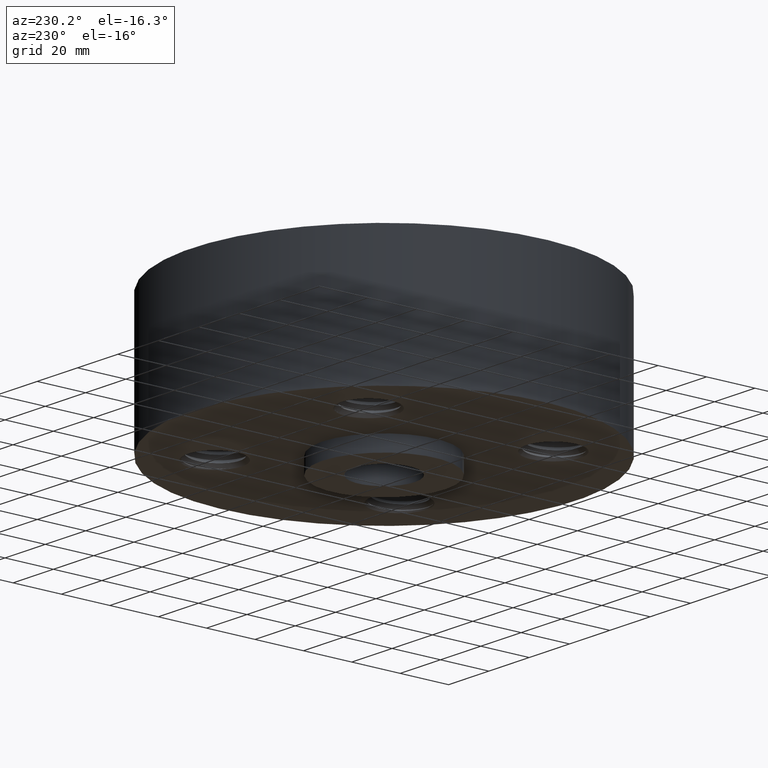
[diagram: clean part render]
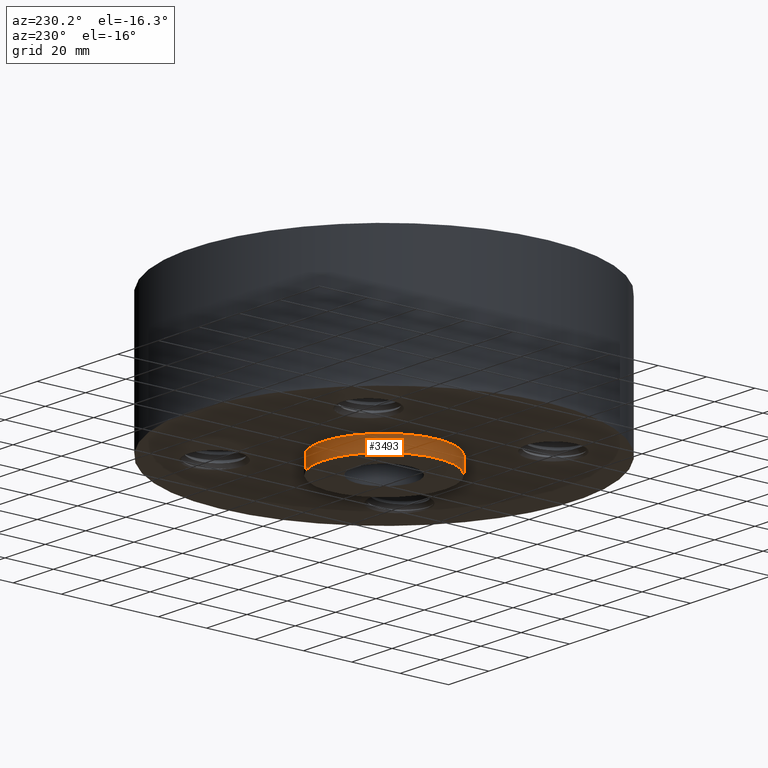
[diagram: same view with one face highlighted and labeled with its STEP entity id]
A machine part, auxiliary view. The second image highlights one B-rep face of the part: STEP entity #3493.
In plain terms, the highlighted cylindrical surface (partial cylindrical patch) has radius 25.4 mm, axis along (0, 0, -1).
Its self-contained STEP definition (entity closure, byte-faithful):
#3346=AXIS2_PLACEMENT_3D('Circle Axis2P3D',#3344,#3345,$) ;
#3454=AXIS2_PLACEMENT_3D('Cylinder Axis2P3D',#3451,#3452,#3453) ;
#3484=AXIS2_PLACEMENT_3D('Circle Axis2P3D',#3482,#3483,$) ;
#3339=CARTESIAN_POINT('Vertex',(0.479425538606,0.877582561894,-2.76943822206E-014)) ;
#3341=CARTESIAN_POINT('Vertex',(-0.479425538606,-0.877582561894,-2.76943822206E-014)) ;
#3344=CARTESIAN_POINT('Axis2P3D Location',(0.,0.,0.)) ;
#3451=CARTESIAN_POINT('Axis2P3D Location',(0.,0.,0.935000000004)) ;
#3460=CARTESIAN_POINT('Vertex',(0.479425538606,0.877582561894,-0.250000000001)) ;
#3462=CARTESIAN_POINT('Vertex',(-0.479425538606,-0.877582561894,-0.250000000001)) ;
#3465=CARTESIAN_POINT('Line Origine',(0.479425538606,0.877582561894,-0.125000000001)) ;
#3470=CARTESIAN_POINT('Line Origine',(-0.479425538606,-0.877582561894,-0.125000000001)) ;
#3482=CARTESIAN_POINT('Axis2P3D Location',(0.,0.,-0.250000000001)) ;
#3345=DIRECTION('Axis2P3D Direction',(0.,0.,-0.0393700787402)) ;
#3452=DIRECTION('Axis2P3D Direction',(0.,0.,-0.0393700787402)) ;
#3453=DIRECTION('Axis2P3D XDirection',(-0.0188750212049,-0.0345504945626,0.)) ;
#3466=DIRECTION('Vector Direction',(0.,0.,-0.0393700787402)) ;
#3471=DIRECTION('Vector Direction',(0.,0.,-0.0393700787402)) ;
#3483=DIRECTION('Axis2P3D Direction',(0.,0.,-0.0393700787402)) ;
#3467=VECTOR('Line Direction',#3466,0.0393700787402) ;
#3472=VECTOR('Line Direction',#3471,0.0393700787402) ;
#3488=ORIENTED_EDGE('',*,*,#3486,.F.) ;
#3489=ORIENTED_EDGE('',*,*,#3474,.T.) ;
#3490=ORIENTED_EDGE('',*,*,#3348,.T.) ;
#3491=ORIENTED_EDGE('',*,*,#3469,.F.) ;
#3493=ADVANCED_FACE('PartBody',(#3492),#3455,.T.) ;
#3347=CIRCLE('generated circle',#3346,1.) ;
#3485=CIRCLE('generated circle',#3484,1.) ;
#3455=CYLINDRICAL_SURFACE('generated cylinder',#3454,1.) ;
#3348=EDGE_CURVE('',#3342,#3340,#3347,.T.) ;
#3469=EDGE_CURVE('',#3461,#3340,#3468,.F.) ;
#3474=EDGE_CURVE('',#3463,#3342,#3473,.F.) ;
#3486=EDGE_CURVE('',#3463,#3461,#3485,.T.) ;
#3487=EDGE_LOOP('',(#3488,#3489,#3490,#3491)) ;
#3492=FACE_OUTER_BOUND('',#3487,.T.) ;
#3468=LINE('Line',#3465,#3467) ;
#3473=LINE('Line',#3470,#3472) ;
#3340=VERTEX_POINT('',#3339) ;
#3342=VERTEX_POINT('',#3341) ;
#3461=VERTEX_POINT('',#3460) ;
#3463=VERTEX_POINT('',#3462) ;